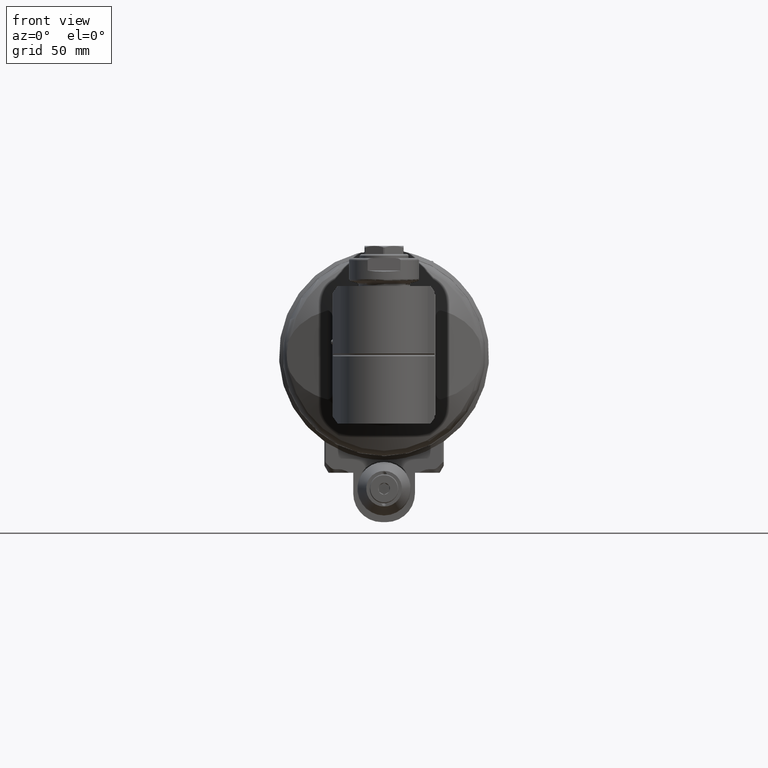
[diagram: clean part render]
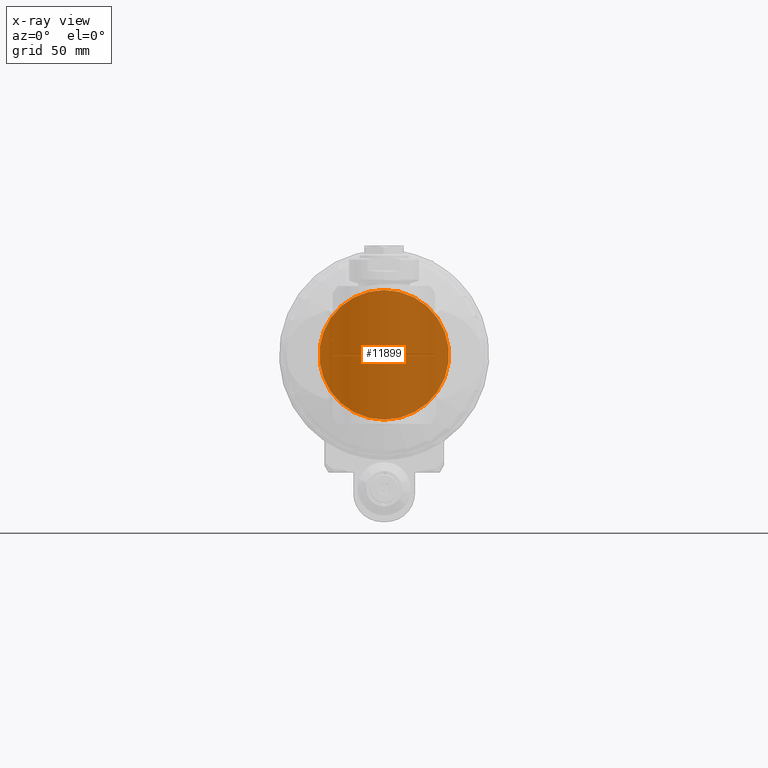
[diagram: x-ray — body ghosted, one internal face saturated and labeled with its STEP entity id]
A machine part, front view, then the same camera in x-ray: the body is ghosted and one INTERNAL B-rep face — a face not visible from any outside direction — is saturated and labeled: STEP entity #11899.
In plain terms, the highlighted planar face has unit normal (0, -1, -0).
Its self-contained STEP definition (entity closure, byte-faithful):
#642=PLANE('',#13162);
#1381=FACE_OUTER_BOUND('',#2106,.T.);
#2106=EDGE_LOOP('',(#10444));
#2686=CIRCLE('',#13161,31.5);
#5608=VERTEX_POINT('',#50702);
#7320=EDGE_CURVE('',#5608,#5608,#2686,.T.);
#10444=ORIENTED_EDGE('',*,*,#7320,.T.);
#11899=ADVANCED_FACE('',(#1381),#642,.F.);
#13161=AXIS2_PLACEMENT_3D('',#50704,#16004,#16005);
#13162=AXIS2_PLACEMENT_3D('',#50705,#16006,#16007);
#16004=DIRECTION('center_axis',(-1.,0.,0.));
#16005=DIRECTION('ref_axis',(0.,-1.,0.));
#16006=DIRECTION('center_axis',(1.,0.,0.));
#16007=DIRECTION('ref_axis',(0.,1.,0.));
#50702=CARTESIAN_POINT('',(-28.0000000000011,31.5000000000019,3.8576374173144E-15));
#50704=CARTESIAN_POINT('Origin',(-28.,0.,0.));
#50705=CARTESIAN_POINT('Origin',(-28.,0.,0.));